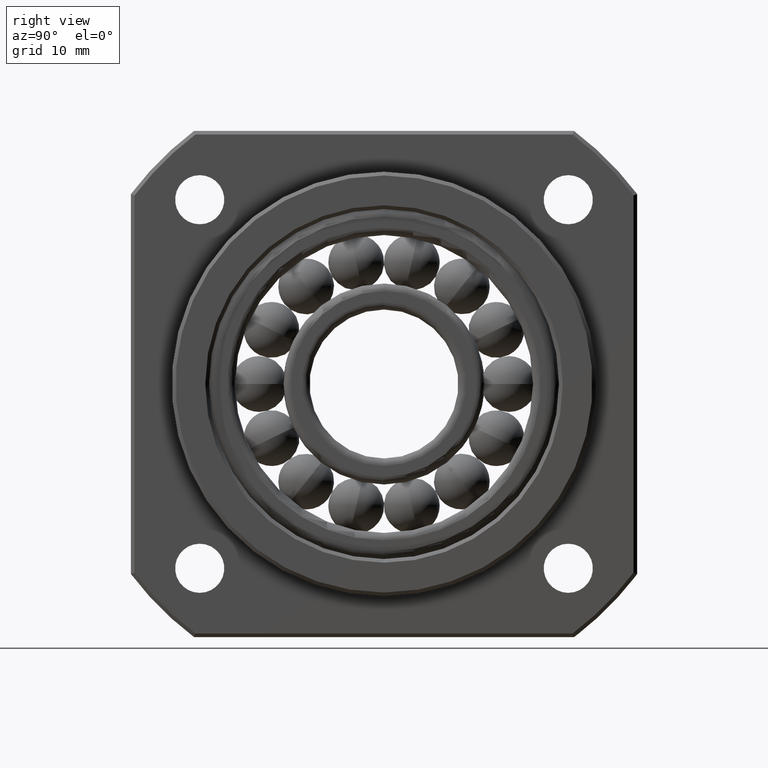
[diagram: clean part render]
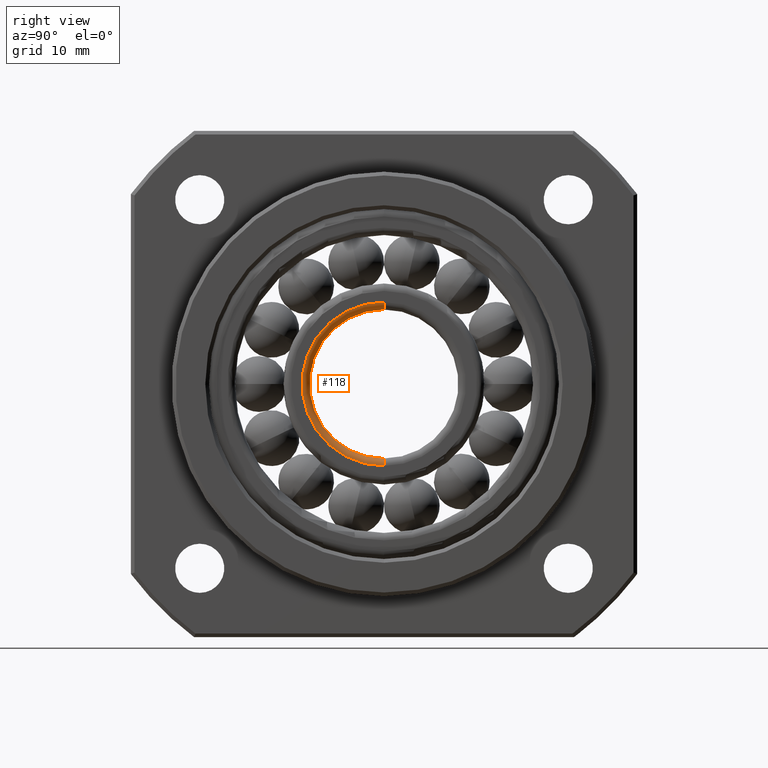
[diagram: same view with one face highlighted and labeled with its STEP entity id]
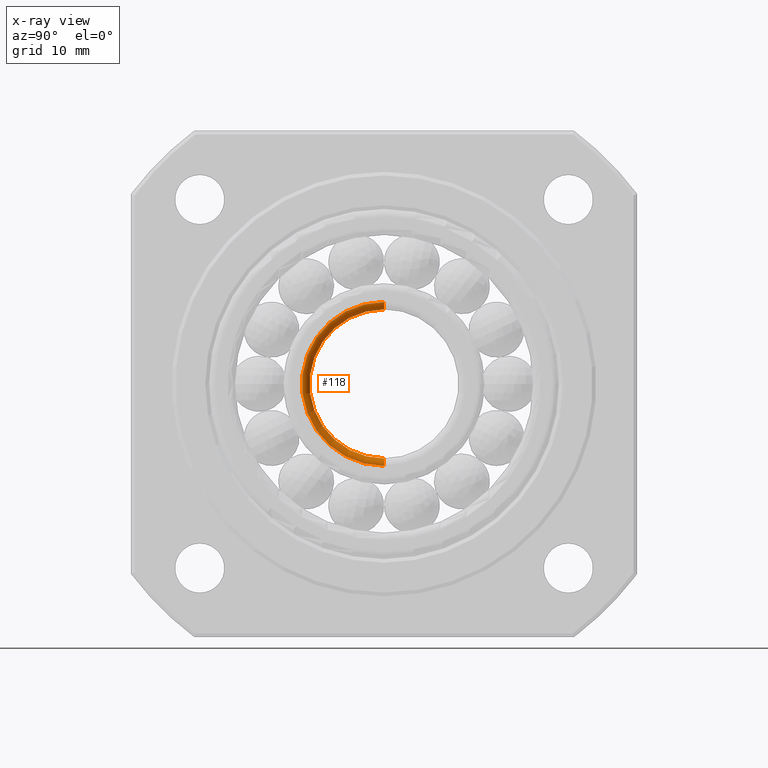
[diagram: x-ray of the same camera — body ghosted, the highlighted face saturated]
A machine part, right view. The second image highlights one B-rep face of the part: STEP entity #118.
The next image is the same camera in x-ray: the body ghosted, the highlighted face saturated — about 0% of this face is hidden behind the body in this view.
In plain terms, the highlighted toroidal blend (fillet) surface has major radius 11 mm and minor (blend) radius 1 mm.
Its self-contained STEP definition (entity closure, byte-faithful):
#93 = EDGE_CURVE ( 'NONE', #542, #548, #2081, .T. ) ;
#114 = EDGE_CURVE ( 'NONE', #539, #542, #2171, .T. ) ;
#118 = ADVANCED_FACE ( 'NONE', ( #2163 ), #2162, .T. ) ;
#119 = EDGE_LOOP ( 'NONE', ( #120, #121, #122, #174 ) ) ;
#120 = ORIENTED_EDGE ( 'NONE', *, *, #524, .F. ) ;
#121 = ORIENTED_EDGE ( 'NONE', *, *, #114, .T. ) ;
#122 = ORIENTED_EDGE ( 'NONE', *, *, #93, .T. ) ;
#174 = ORIENTED_EDGE ( 'NONE', *, *, #514, .F. ) ;
#514 = EDGE_CURVE ( 'NONE', #516, #548, #2896, .T. ) ;
#516 = VERTEX_POINT ( 'NONE', #2891 ) ;
#524 = EDGE_CURVE ( 'NONE', #539, #516, #634, .T. ) ;
#539 = VERTEX_POINT ( 'NONE', #666 ) ;
#542 = VERTEX_POINT ( 'NONE', #660 ) ;
#548 = VERTEX_POINT ( 'NONE', #654 ) ;
#630 = DIRECTION ( 'NONE',  ( 0.0000000000000000000, 1.224606353822378500E-016, 1.000000000000000000 ) ) ;
#631 = DIRECTION ( 'NONE',  ( 0.0000000000000000000, 1.000000000000000000, -1.224606353822377300E-016 ) ) ;
#632 = CARTESIAN_POINT ( 'NONE',  ( 16.00000000000000000, 1.347066989204615000E-015, 11.00000000000000000 ) ) ;
#633 = AXIS2_PLACEMENT_3D ( 'NONE', #632, #631, #630 ) ;
#634 = CIRCLE ( 'NONE', #633, 0.9999999999999991100 ) ;
#654 = CARTESIAN_POINT ( 'NONE',  ( 16.00000000000000000, 0.0000000000000000000, -10.00000000000000000 ) ) ;
#660 = CARTESIAN_POINT ( 'NONE',  ( 17.00000000000000000, 0.0000000000000000000, -11.00000000000000000 ) ) ;
#666 = CARTESIAN_POINT ( 'NONE',  ( 17.00000000000000000, 1.347066989204615200E-015, 11.00000000000000000 ) ) ;
#2077 = DIRECTION ( 'NONE',  ( 0.0000000000000000000, 0.0000000000000000000, -1.000000000000000000 ) ) ;
#2078 = DIRECTION ( 'NONE',  ( 0.0000000000000000000, -1.000000000000000000, 0.0000000000000000000 ) ) ;
#2079 = CARTESIAN_POINT ( 'NONE',  ( 16.00000000000000000, 0.0000000000000000000, -11.00000000000000000 ) ) ;
#2080 = AXIS2_PLACEMENT_3D ( 'NONE', #2079, #2078, #2077 ) ;
#2081 = CIRCLE ( 'NONE', #2080, 0.9999999999999991100 ) ;
#2157 = DIRECTION ( 'NONE',  ( 0.0000000000000000000, 0.0000000000000000000, -1.000000000000000000 ) ) ;
#2158 = DIRECTION ( 'NONE',  ( 1.000000000000000000, 0.0000000000000000000, 0.0000000000000000000 ) ) ;
#2159 = CARTESIAN_POINT ( 'NONE',  ( 16.00000000000000000, 0.0000000000000000000, 0.0000000000000000000 ) ) ;
#2160 = AXIS2_PLACEMENT_3D ( 'NONE', #2159, #2158, #2157 ) ;
#2162 = TOROIDAL_SURFACE ( 'NONE', #2160, 11.00000000000000000, 0.9999999999999995600 ) ;
#2163 = FACE_OUTER_BOUND ( 'NONE', #119, .T. ) ;
#2164 = DIRECTION ( 'NONE',  ( 0.0000000000000000000, 0.0000000000000000000, -1.000000000000000000 ) ) ;
#2165 = DIRECTION ( 'NONE',  ( 1.000000000000000000, 0.0000000000000000000, 0.0000000000000000000 ) ) ;
#2166 = CARTESIAN_POINT ( 'NONE',  ( 17.00000000000000000, 0.0000000000000000000, 0.0000000000000000000 ) ) ;
#2167 = AXIS2_PLACEMENT_3D ( 'NONE', #2166, #2165, #2164 ) ;
#2171 = CIRCLE ( 'NONE', #2167, 11.00000000000000000 ) ;
#2891 = CARTESIAN_POINT ( 'NONE',  ( 16.00000000000000000, 1.285836671513496100E-015, 10.00000000000000000 ) ) ;
#2892 = DIRECTION ( 'NONE',  ( 0.0000000000000000000, 0.0000000000000000000, -1.000000000000000000 ) ) ;
#2893 = DIRECTION ( 'NONE',  ( 1.000000000000000000, 0.0000000000000000000, 0.0000000000000000000 ) ) ;
#2894 = CARTESIAN_POINT ( 'NONE',  ( 16.00000000000000000, 0.0000000000000000000, 0.0000000000000000000 ) ) ;
#2895 = AXIS2_PLACEMENT_3D ( 'NONE', #2894, #2893, #2892 ) ;
#2896 = CIRCLE ( 'NONE', #2895, 10.00000000000000000 ) ;